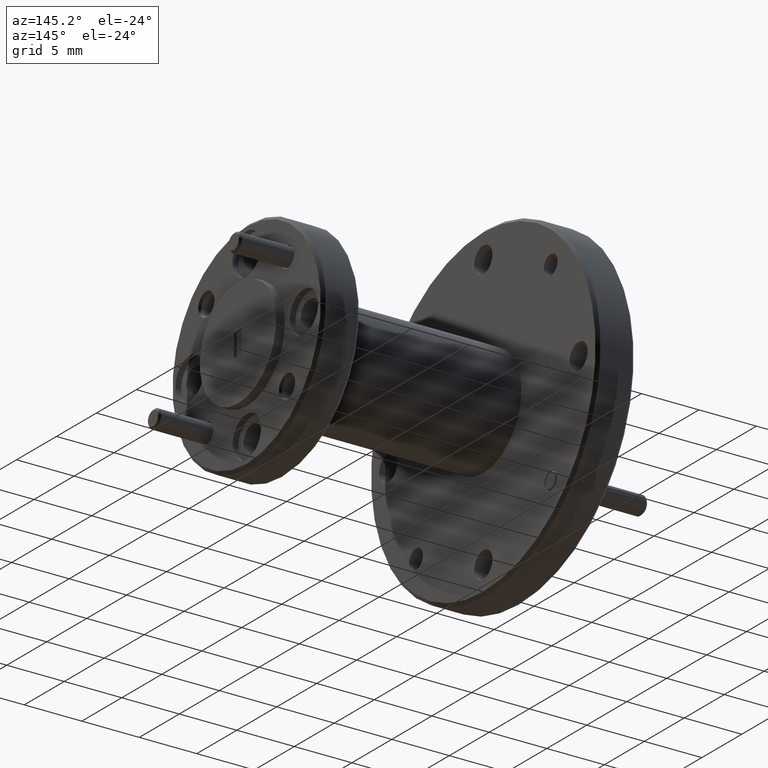
[diagram: clean part render]
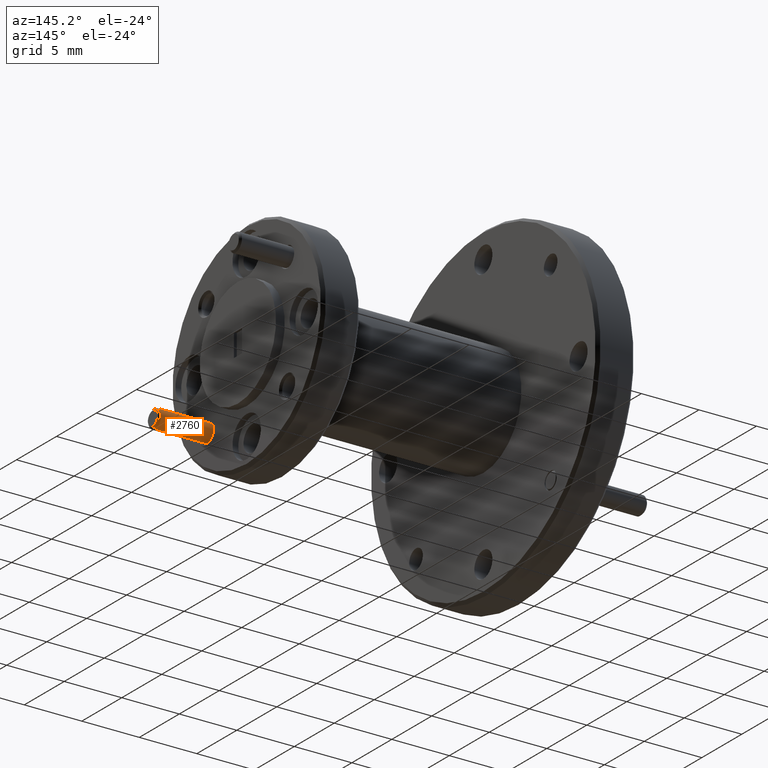
[diagram: same view with one face highlighted and labeled with its STEP entity id]
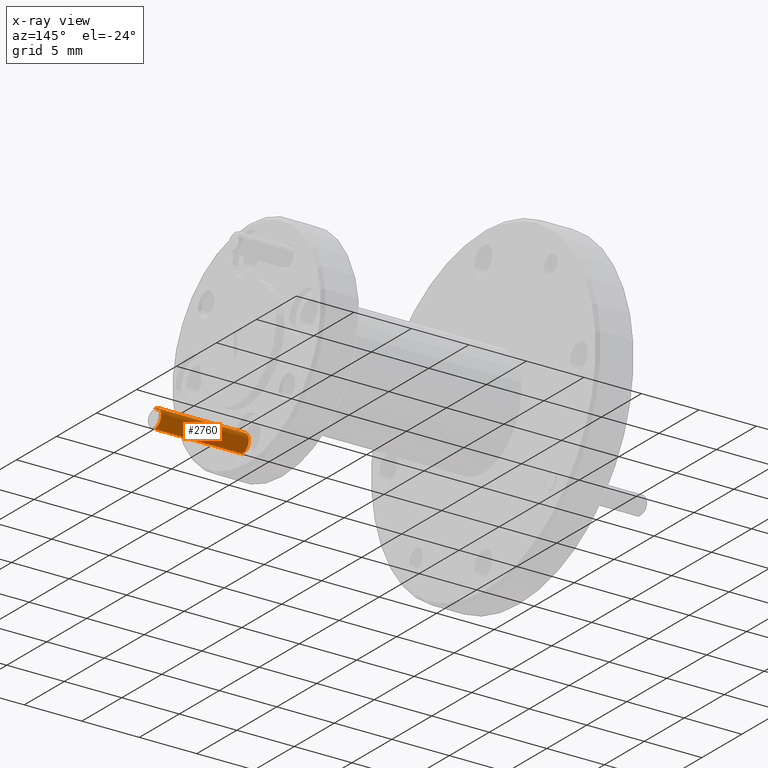
[diagram: x-ray of the same camera — body ghosted, the highlighted face saturated]
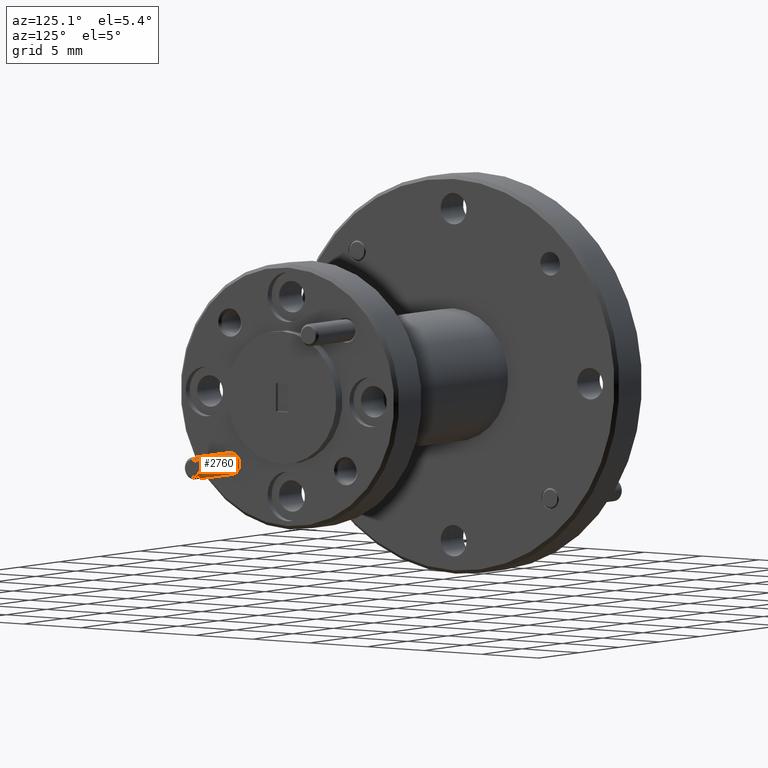
[diagram: same view with one face highlighted and labeled with its STEP entity id]
A machine part, auxiliary view. The second image highlights one B-rep face of the part: STEP entity #2760.
The next image is the same camera in x-ray: the body ghosted, the highlighted face saturated — about 0% of this face is hidden behind the body in this view.
A second angle (auxiliary view) of the same face is appended — the face is thin or edge-on in the first view.
In plain terms, the highlighted cylindrical surface (edge-blend (fillet) strip) has radius 0.7938 mm, axis along (1, -0, 0).
Its self-contained STEP definition (entity closure, byte-faithful):
#123 = CIRCLE ( 'NONE', #147, 0.03125000000000093000 ) ;
#147 = AXIS2_PLACEMENT_3D ( 'NONE', #1416, #216, #2330 ) ;
#186 = DIRECTION ( 'NONE',  ( 1.000000000000000000, -2.996702551964276500E-016, 5.818496234929241800E-016 ) ) ;
#216 = DIRECTION ( 'NONE',  ( -1.000000000000000000, 2.996702551964276500E-016, -5.818496234929241800E-016 ) ) ;
#282 = ORIENTED_EDGE ( 'NONE', *, *, #310, .T. ) ;
#305 = ORIENTED_EDGE ( 'NONE', *, *, #599, .T. ) ;
#310 = EDGE_CURVE ( 'NONE', #2429, #1531, #1934, .T. ) ;
#465 = CARTESIAN_POINT ( 'NONE',  ( -1.560299588133220400, 0.5138794623908092800, 0.3509043758561024600 ) ) ;
#515 = CARTESIAN_POINT ( 'NONE',  ( -1.554049588133221000, 0.5138794623908074000, 0.3196543758561053400 ) ) ;
#599 = EDGE_CURVE ( 'NONE', #1531, #1207, #1256, .T. ) ;
#609 = CARTESIAN_POINT ( 'NONE',  ( -1.554049588133221000, 0.5138794623908075100, 0.2884043758561044000 ) ) ;
#698 = AXIS2_PLACEMENT_3D ( 'NONE', #515, #1069, #1410 ) ;
#754 = CARTESIAN_POINT ( 'NONE',  ( -1.254049588133234700, 0.5138794623908092800, 0.3509043758561102300 ) ) ;
#777 = VERTEX_POINT ( 'NONE', #2551 ) ;
#1069 = DIRECTION ( 'NONE',  ( 1.000000000000000000, -2.996702551964276500E-016, 5.818496234929241800E-016 ) ) ;
#1207 = VERTEX_POINT ( 'NONE', #754 ) ;
#1215 = ORIENTED_EDGE ( 'NONE', *, *, #1935, .F. ) ;
#1256 = LINE ( 'NONE', #465, #3627 ) ;
#1410 = DIRECTION ( 'NONE',  ( 0.0000000000000000000, 4.370956789862691000E-015, -1.000000000000000000 ) ) ;
#1416 = CARTESIAN_POINT ( 'NONE',  ( -1.254049588133234700, 0.5138794623908067300, 0.3196543758561102800 ) ) ;
#1531 = VERTEX_POINT ( 'NONE', #3946 ) ;
#1560 = CARTESIAN_POINT ( 'NONE',  ( -1.560299588133220400, 0.5138794623908095000, 0.2884043758561005700 ) ) ;
#1704 = CARTESIAN_POINT ( 'NONE',  ( -1.560299588133220400, 0.5138794623908093900, 0.3196543758561015100 ) ) ;
#1934 = CIRCLE ( 'NONE', #698, 0.03125000000000093000 ) ;
#1935 = EDGE_CURVE ( 'NONE', #2429, #777, #2727, .T. ) ;
#1958 = VECTOR ( 'NONE', #2522, 39.37007874015748100 ) ;
#2021 = DIRECTION ( 'NONE',  ( 1.000000000000000000, -2.996702551964276500E-016, 5.818496234929241800E-016 ) ) ;
#2163 = CYLINDRICAL_SURFACE ( 'NONE', #3085, 0.03125000000000093000 ) ;
#2330 = DIRECTION ( 'NONE',  ( 0.0000000000000000000, 4.370956789862691000E-015, -1.000000000000000000 ) ) ;
#2370 = ORIENTED_EDGE ( 'NONE', *, *, #2763, .T. ) ;
#2429 = VERTEX_POINT ( 'NONE', #609 ) ;
#2522 = DIRECTION ( 'NONE',  ( 1.000000000000000000, -2.996702551964276500E-016, 5.818496234929241800E-016 ) ) ;
#2551 = CARTESIAN_POINT ( 'NONE',  ( -1.254049588133234700, 0.5138794623908068400, 0.2884043758561093400 ) ) ;
#2727 = LINE ( 'NONE', #1560, #1958 ) ;
#2760 = ADVANCED_FACE ( 'NONE', ( #3791 ), #2163, .T. ) ;
#2763 = EDGE_CURVE ( 'NONE', #1207, #777, #123, .T. ) ;
#3085 = AXIS2_PLACEMENT_3D ( 'NONE', #1704, #2021, #3550 ) ;
#3550 = DIRECTION ( 'NONE',  ( 0.0000000000000000000, 4.370956789862691000E-015, -1.000000000000000000 ) ) ;
#3627 = VECTOR ( 'NONE', #186, 39.37007874015748100 ) ;
#3791 = FACE_OUTER_BOUND ( 'NONE', #3949, .T. ) ;
#3946 = CARTESIAN_POINT ( 'NONE',  ( -1.554049588133221000, 0.5138794623908092800, 0.3509043758561053400 ) ) ;
#3949 = EDGE_LOOP ( 'NONE', ( #282, #305, #2370, #1215 ) ) ;